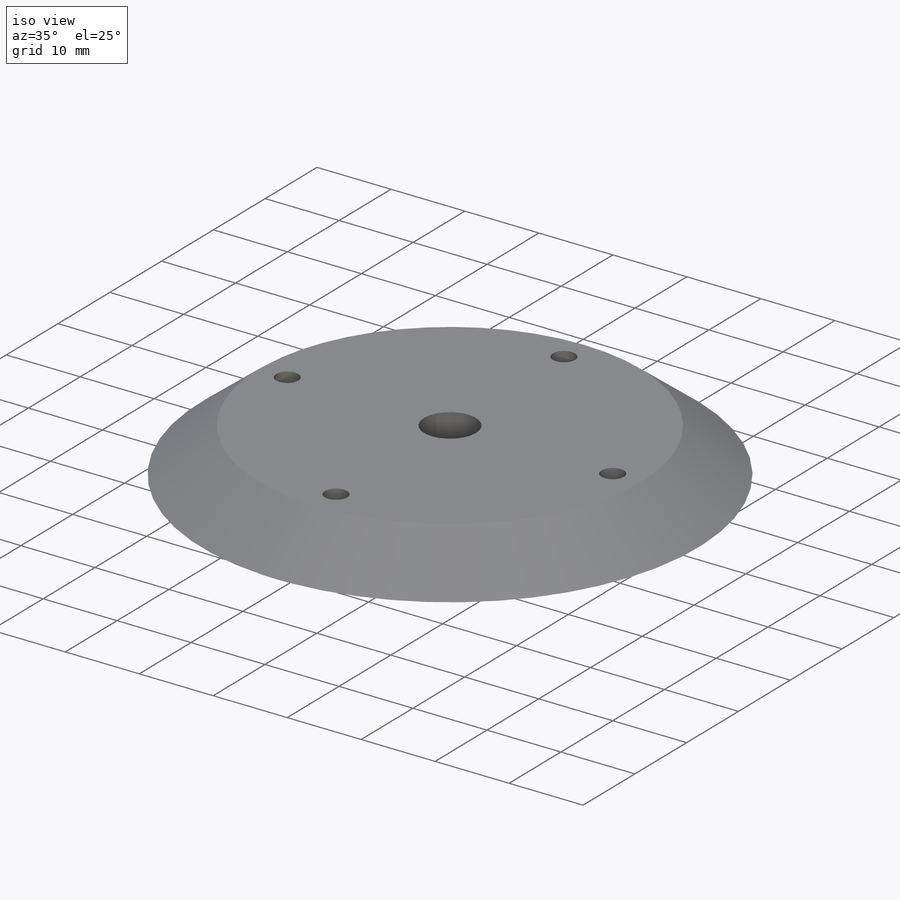
[diagram: iso view]
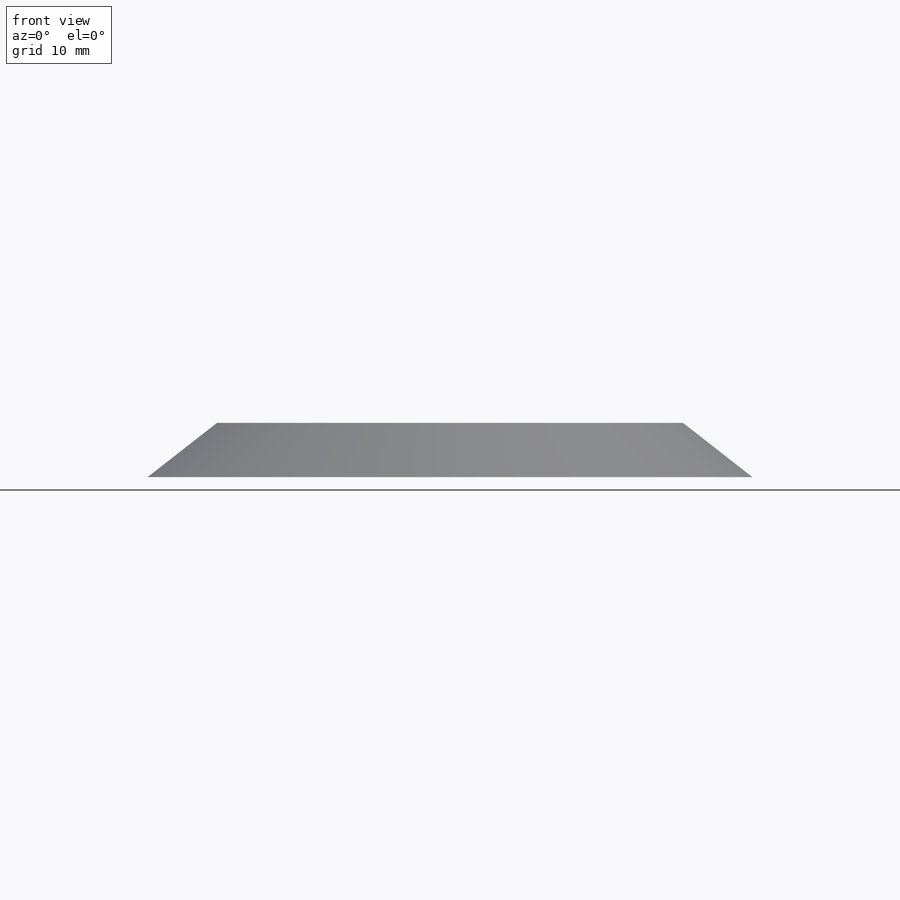
[diagram: front view]
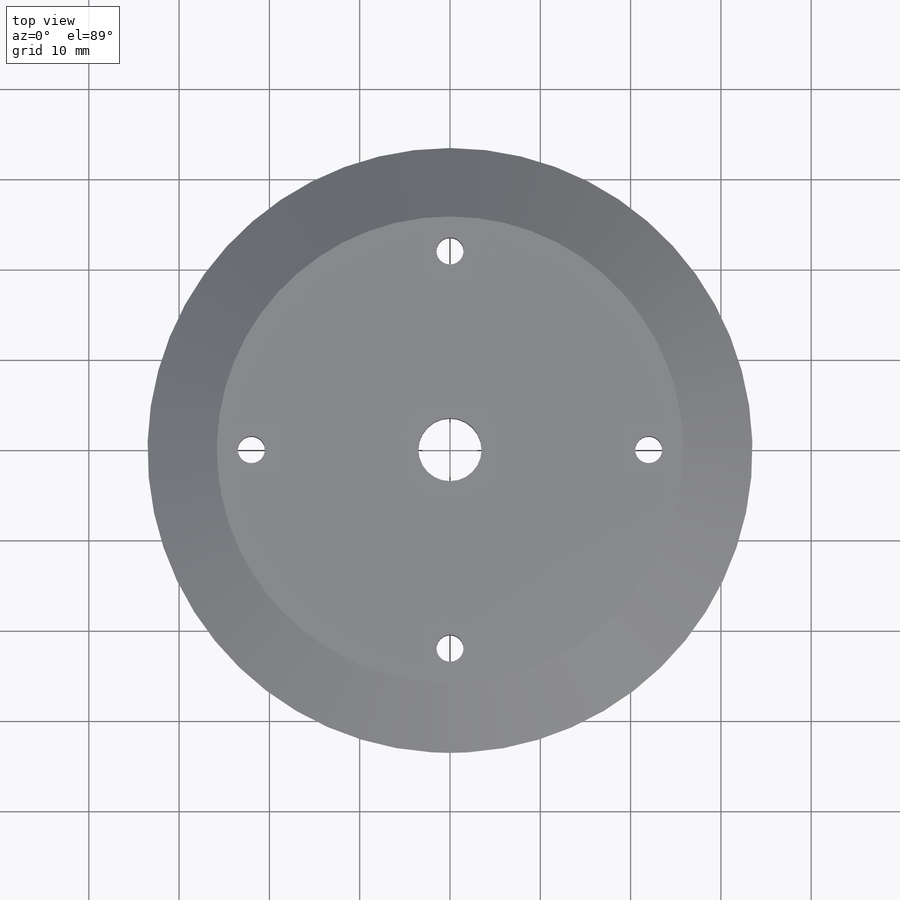
[diagram: top view]
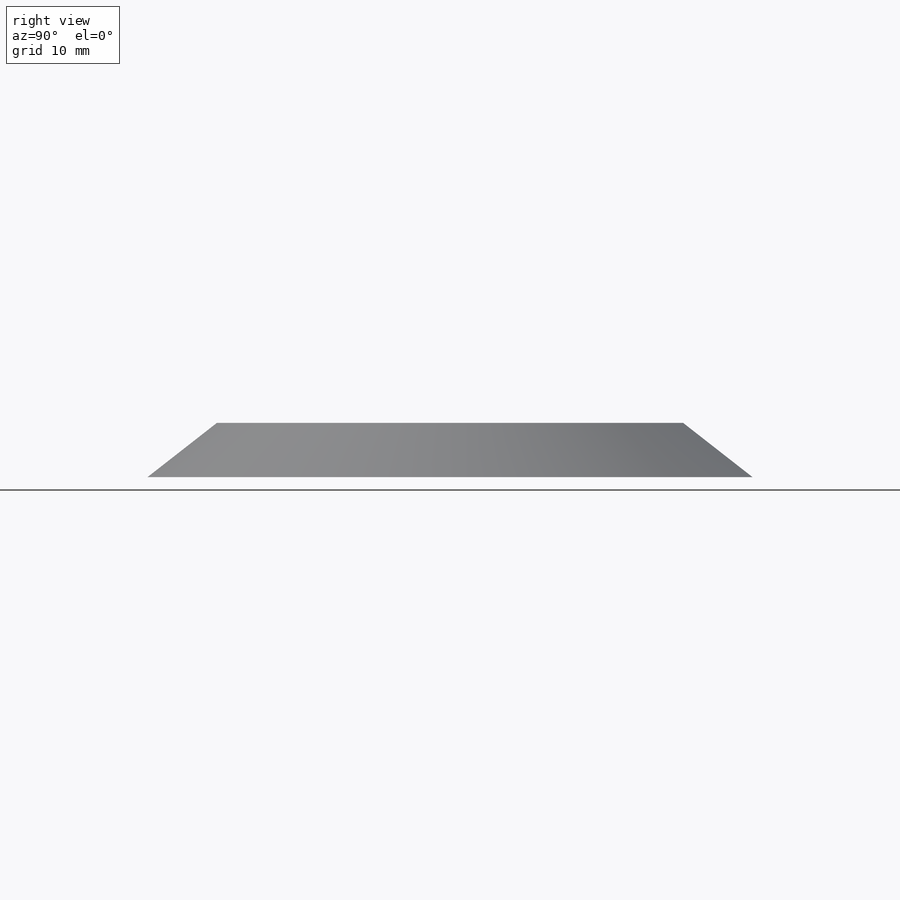
[diagram: right view]
SOLIDWORKS PART (.sldprt)
format: sldprt  version: not decoded by parser v0  size: 149,504 bytes
history: native  units: mm
features: sketch x3, cut_extrude x2, material x1, extrude x1, chamfer x1 (+13 scaffold rows collapsed)
feature tree (21):
  scaffold x13  (default folders/planes/origin — collapsed)
  material  "3.0205 (EN-AW 1200)"
  sketch  "Sketch1"  dims[D1=110.0mm]
  extrude  "Boss-Extrude1"  Depth=6mm
  sketch  "Sketch3"  dims[D1=7.0mm]
  cut_extrude  "Cut-Extrude1"  Depth=100mm
  sketch  "Sketch4"  dims[c1.D1=4.0mm c1.D2=~3.308151mm c1.D5=2.0mm c2.D1=22.0mm c2.D2=22.0mm c2.D3=22.0mm c2.D4=22.0mm]
  cut_extrude  "Cut-Extrude2"  Depth=100mm
  chamfer  "Chamfer1"  Distance=6mm Angle=52deg
decode coverage: 7 of 7 modeling features carry decoded parameters
note: ~ marks probable driven/reference dimensions
note: suppression state not decoded; provenance and decode notes live in map.json
